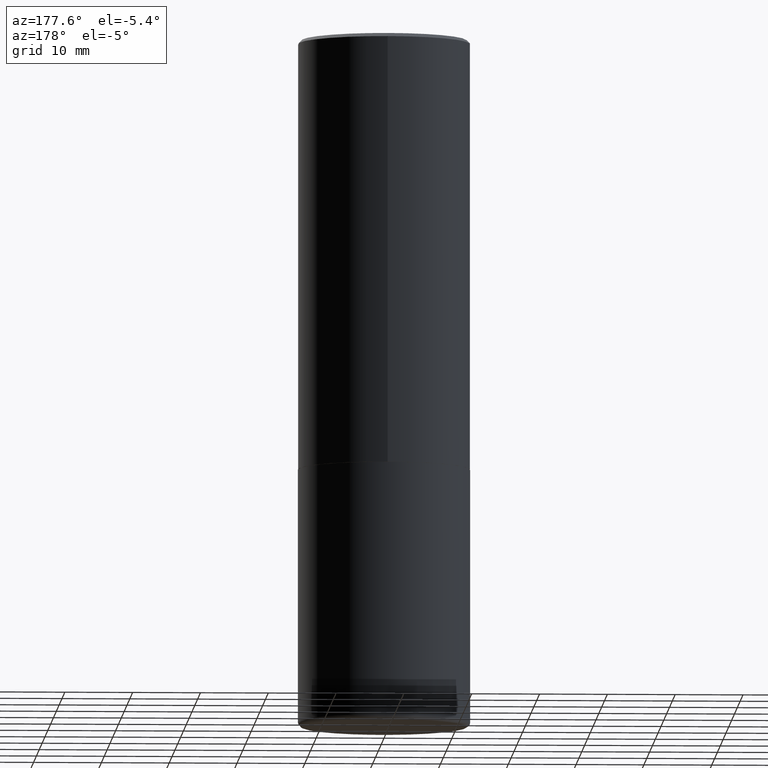
[diagram: clean part render]
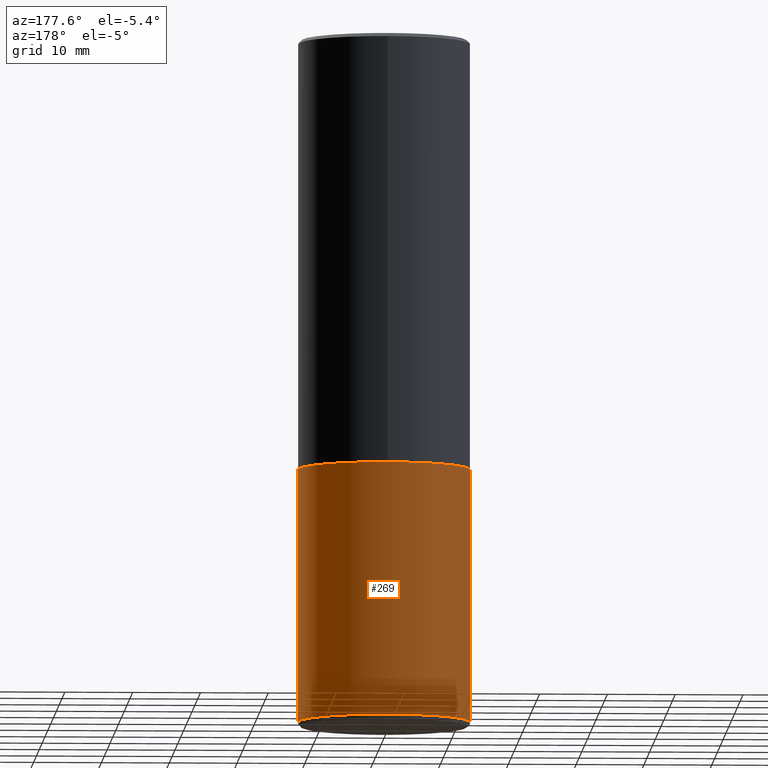
[diagram: same view with one face highlighted and labeled with its STEP entity id]
A machine part, auxiliary view. The second image highlights one B-rep face of the part: STEP entity #269.
In plain terms, the highlighted cylindrical surface (partial cylindrical patch) has radius 12.7 mm, axis along (-0, 0, 1).
Its self-contained STEP definition (entity closure, byte-faithful):
#6 = CARTESIAN_POINT ( 'NONE',  ( -0.4999999999999999445, -1.030846723640678645E-14, -3.970000000000000195 ) ) ;
#18 = CIRCLE ( 'NONE', #401, 0.4999999999999999445 ) ;
#21 = DIRECTION ( 'NONE',  ( -2.445468806185136597E-29, 3.491481338843145583E-15, 1.000000000000000000 ) ) ;
#30 = ORIENTED_EDGE ( 'NONE', *, *, #83, .T. ) ;
#31 = DIRECTION ( 'NONE',  ( 1.000000000000000000, -6.982962677686266711E-15, 4.876176775795935793E-29 ) ) ;
#36 = EDGE_CURVE ( 'NONE', #320, #407, #138, .T. ) ;
#47 = CARTESIAN_POINT ( 'NONE',  ( -0.5000000000000000000, 3.552713678800500929E-15, -2.459467545127452891E-29 ) ) ;
#59 = CARTESIAN_POINT ( 'NONE',  ( 6.113672015462842613E-29, -8.728703347107864943E-15, -2.500000000000000000 ) ) ;
#67 = VECTOR ( 'NONE', #347, 39.37007874015748143 ) ;
#80 = DIRECTION ( 'NONE',  ( 1.000000000000000000, -6.982962677686267499E-15, 0.000000000000000000 ) ) ;
#83 = EDGE_CURVE ( 'NONE', #156, #320, #18, .T. ) ;
#138 = LINE ( 'NONE', #47, #348 ) ;
#146 = CARTESIAN_POINT ( 'NONE',  ( 0.5000000000000000000, -1.222018468595099830E-14, -2.500000000000000000 ) ) ;
#150 = ORIENTED_EDGE ( 'NONE', *, *, #343, .F. ) ;
#151 = CARTESIAN_POINT ( 'NONE',  ( -0.5000000000000000000, -7.742228452357075234E-15, -2.500000000000000000 ) ) ;
#156 = VERTEX_POINT ( 'NONE', #327 ) ;
#166 = DIRECTION ( 'NONE',  ( -2.445468806185136877E-29, 3.491481338843145188E-15, 1.000000000000000000 ) ) ;
#188 = ORIENTED_EDGE ( 'NONE', *, *, #36, .T. ) ;
#193 = EDGE_LOOP ( 'NONE', ( #30, #188, #255, #150 ) ) ;
#252 = CIRCLE ( 'NONE', #296, 0.5000000000000000000 ) ;
#255 = ORIENTED_EDGE ( 'NONE', *, *, #384, .F. ) ;
#269 = ADVANCED_FACE ( 'NONE', ( #380 ), #351, .T. ) ;
#274 = CARTESIAN_POINT ( 'NONE',  ( 0.5000000000000000000, -3.491481338843133355E-15, 2.438088387897967896E-29 ) ) ;
#288 = CARTESIAN_POINT ( 'NONE',  ( 0.000000000000000000, 0.000000000000000000, 0.000000000000000000 ) ) ;
#296 = AXIS2_PLACEMENT_3D ( 'NONE', #59, #21, #337 ) ;
#320 = VERTEX_POINT ( 'NONE', #6 ) ;
#327 = CARTESIAN_POINT ( 'NONE',  ( 0.4999999999999999445, -1.735266225405042074E-14, -3.970000000000000195 ) ) ;
#337 = DIRECTION ( 'NONE',  ( 1.000000000000000000, -6.982962677686269077E-15, 0.000000000000000000 ) ) ;
#338 = DIRECTION ( 'NONE',  ( -2.445468806185136597E-29, 3.491481338843145583E-15, 1.000000000000000000 ) ) ;
#343 = EDGE_CURVE ( 'NONE', #156, #345, #370, .T. ) ;
#345 = VERTEX_POINT ( 'NONE', #146 ) ;
#347 = DIRECTION ( 'NONE',  ( -2.445468806185136877E-29, 3.491481338843145188E-15, 1.000000000000000000 ) ) ;
#348 = VECTOR ( 'NONE', #166, 39.37007874015748143 ) ;
#351 = CYLINDRICAL_SURFACE ( 'NONE', #382, 0.5000000000000000000 ) ;
#363 = CARTESIAN_POINT ( 'NONE',  ( 9.708511160554992872E-29, -1.386118091520728738E-14, -3.970000000000000195 ) ) ;
#370 = LINE ( 'NONE', #274, #67 ) ;
#380 = FACE_OUTER_BOUND ( 'NONE', #193, .T. ) ;
#382 = AXIS2_PLACEMENT_3D ( 'NONE', #288, #417, #31 ) ;
#384 = EDGE_CURVE ( 'NONE', #345, #407, #252, .T. ) ;
#401 = AXIS2_PLACEMENT_3D ( 'NONE', #363, #338, #80 ) ;
#407 = VERTEX_POINT ( 'NONE', #151 ) ;
#417 = DIRECTION ( 'NONE',  ( -2.445468806185136597E-29, 3.491481338843145583E-15, 1.000000000000000000 ) ) ;